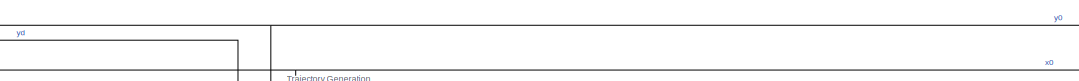
[diagram: root canvas - part 1/3, top center region]
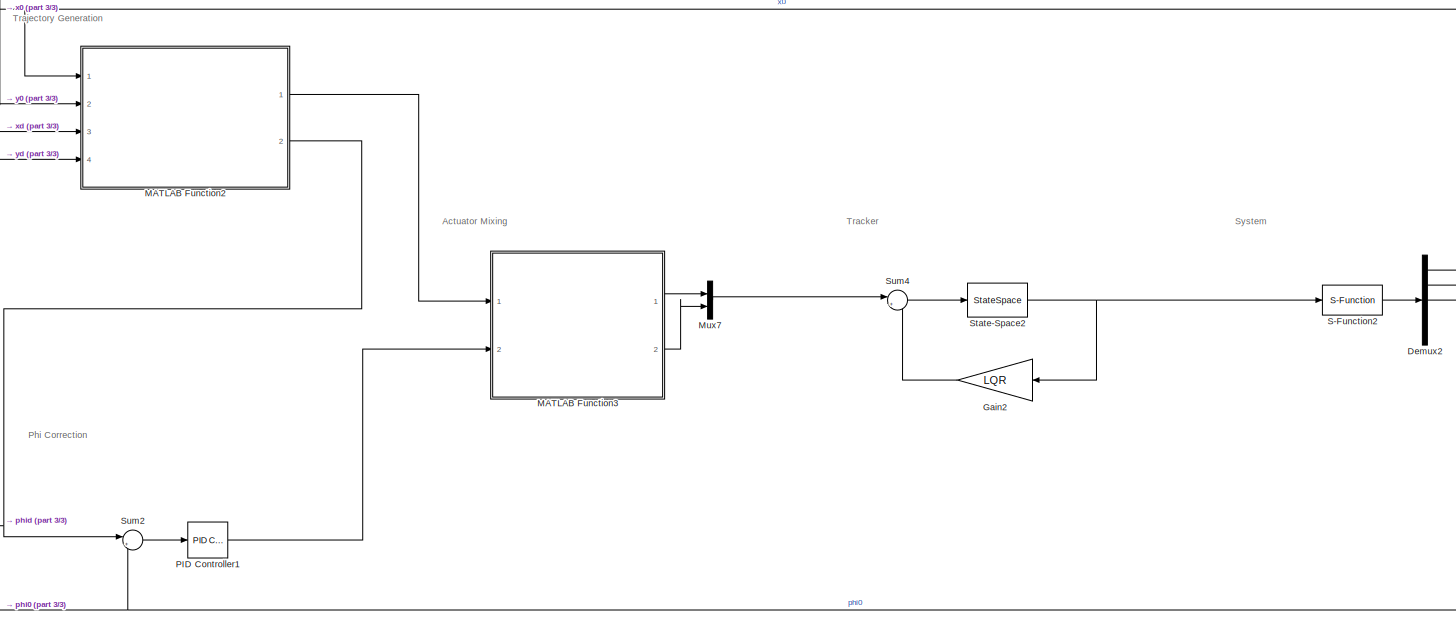
[diagram: root canvas - part 2/3, right side, full height]
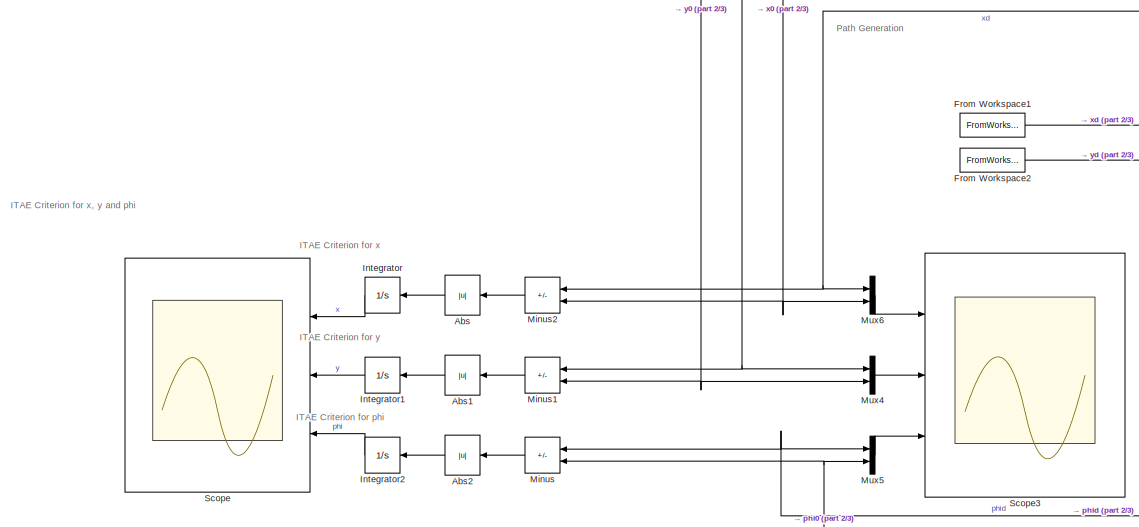
[diagram: root canvas - part 3/3, left side, full height]
MODEL slx_29a52156bc82
KIND model
CONFIG AbsTol = auto
CONFIG EnableMultiTasking = off
CONFIG FixedStep = auto
CONFIG MaxStep = auto
CONFIG MinStep = auto
CONFIG RelTol = 1e-3
CONFIG SampleTimeConstraint = Unconstrained
CONFIG SolverName = VariableStepAuto
CONFIG StartTime = 0.0
CONFIG StopTime = 100
BLOCK [Abs] Abs
  SaturateOnIntegerOverflow = off
BLOCK [Abs] Abs1
  SaturateOnIntegerOverflow = off
BLOCK [Abs] Abs2
  SaturateOnIntegerOverflow = off
BLOCK [Demux] Demux2
  Outputs = 5
  Ports = [1, 5]
BLOCK [FromWorkspace] From Workspace1
  VariableName = xts
BLOCK [FromWorkspace] From Workspace2
  VariableName = yts
BLOCK [Gain] Gain2
  Gain = LQR
  Multiplication = Matrix(K*u)
BLOCK [Integrator] Integrator
  Ports = [1, 1]
BLOCK [Integrator] Integrator1
  Ports = [1, 1]
BLOCK [Integrator] Integrator2
  Ports = [1, 1]
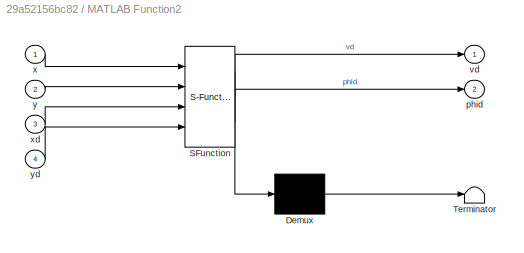
BLOCK [SubSystem] MATLAB Function2
  ErrorFcn = Stateflow.Translate.translate
  PermitHierarchicalResolution = ExplicitOnly
  Ports = [4, 2]
  RequestExecContextInheritance = off
  SFBlockType = MATLAB Function
  TreatAsAtomicUnit = on
BLOCK [Demux] MATLAB Function2/ Demux 
  Outputs = 1
  Ports = [1, 1]
BLOCK [S-Function] MATLAB Function2/ SFunction 
  EnableBusSupport = on
  FunctionName = sf_sfun
  PortCounts = [4 3]
  Ports = [4, 3]
  SFcnIsStateOwnerBlock = off
  SFunctionDeploymentMode = off
  Tag = Stateflow S-Function 3
BLOCK [Terminator] MATLAB Function2/ Terminator 
BLOCK [Outport] MATLAB Function2/phid
  Port = 2
BLOCK [Outport] MATLAB Function2/vd
BLOCK [Inport] MATLAB Function2/x
BLOCK [Inport] MATLAB Function2/xd
  Port = 3
BLOCK [Inport] MATLAB Function2/y
  Port = 2
BLOCK [Inport] MATLAB Function2/yd
  Port = 4
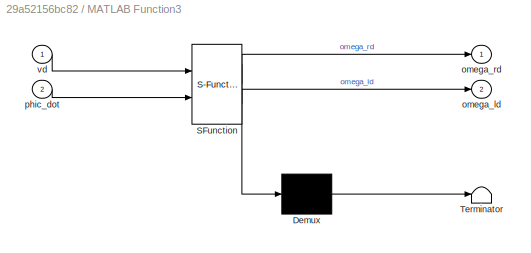
BLOCK [SubSystem] MATLAB Function3
  ErrorFcn = Stateflow.Translate.translate
  PermitHierarchicalResolution = ExplicitOnly
  Ports = [2, 2]
  RequestExecContextInheritance = off
  SFBlockType = MATLAB Function
  TreatAsAtomicUnit = on
BLOCK [Demux] MATLAB Function3/ Demux 
  Outputs = 1
  Ports = [1, 1]
BLOCK [S-Function] MATLAB Function3/ SFunction 
  EnableBusSupport = on
  FunctionName = sf_sfun
  PortCounts = [2 3]
  Ports = [2, 3]
  SFcnIsStateOwnerBlock = off
  SFunctionDeploymentMode = off
  Tag = Stateflow S-Function 4
BLOCK [Terminator] MATLAB Function3/ Terminator 
BLOCK [Outport] MATLAB Function3/omega_ld
  Port = 2
BLOCK [Outport] MATLAB Function3/omega_rd
BLOCK [Inport] MATLAB Function3/phic_dot
  Port = 2
BLOCK [Inport] MATLAB Function3/vd
BLOCK [Sum] Minus
  IconShape = rectangular
  Inputs = +-
  Ports = [2, 1]
BLOCK [Sum] Minus1
  IconShape = rectangular
  Inputs = +-
  Ports = [2, 1]
BLOCK [Sum] Minus2
  IconShape = rectangular
  Inputs = +-
  Ports = [2, 1]
BLOCK [Mux] Mux4
  DisplayOption = bar
  Inputs = 2
  Ports = [2, 1]
BLOCK [Mux] Mux5
  DisplayOption = bar
  Inputs = 2
  Ports = [2, 1]
BLOCK [Mux] Mux6
  DisplayOption = bar
  Inputs = 2
  Ports = [2, 1]
BLOCK [Mux] Mux7
  DisplayOption = bar
  Inputs = 2
  Ports = [2, 1]
BLOCK [Reference] PID Controller1  REF=pid_lib/PID Controller
  Ports = [1, 1]
  SourceBlock = pid_lib/PID Controller
  SourceProductBaseCode = SL
  SourceType = PID 1dof
BLOCK [S-Function] S-Function2
  EnableBusSupport = off
  FunctionName = diffdrive
  Ports = [1, 1]
  SFcnIsStateOwnerBlock = off
  SFunctionDeploymentMode = off
BLOCK [Scope] Scope
  Floating = off
  NumInputPorts = 3
  Ports = [3]
  ScopeSpecificationString = Simulink.scopes.TimeScopeBlockCfg('CurrentConfiguration', extmgr.ConfigurationSet(extmgr.Configuration('Core','General UI',true,'FigureColor',[1 1 1]),extmgr.Configuration('Core','Source UI',true),extmgr.Configuration('Sources','WiredSimulink',true,'DataLoggingVariableName','ScopeData1'),extmgr.Configuration('Visuals','Time Domain',true,'SerializedDisplays',{struct('MinYLimReal','-1.38162','MaxYLi...<+3046ch>
BLOCK [Scope] Scope3
  Floating = off
  NumInputPorts = 3
  Ports = [3]
  ScopeSpecificationString = Simulink.scopes.TimeScopeBlockCfg('CurrentConfiguration', extmgr.ConfigurationSet(extmgr.Configuration('Core','General UI',true,'FigureColor',[1 1 1]),extmgr.Configuration('Core','Source UI',true),extmgr.Configuration('Sources','WiredSimulink',true,'DataLoggingVariableName','ScopeData3'),extmgr.Configuration('Visuals','Time Domain',true,'SerializedDisplays',{struct('MinYLimReal','-1.13668','MaxYLi...<+3294ch>
BLOCK [StateSpace] State-Space2
  A = [-10.3 0; 0 -9.4318]
  B = [30 0; 0 26.5152]
  C = [1 0; 0 1]
  D = [0 0; 0 0]
  InitialCondition = 0
  Ports = [1, 1]
BLOCK [Sum] Sum2
  Inputs = |+-
  Ports = [2, 1]
BLOCK [Sum] Sum4
  Inputs = |+-
  Ports = [2, 1]
ANNOTATION (root): Actuator Mixing
ANNOTATION (root): ITAE Criterion for phi
ANNOTATION (root): ITAE Criterion for x
ANNOTATION (root): ITAE Criterion for x, y and phi
ANNOTATION (root): ITAE Criterion for y
ANNOTATION (root): Path Generation
ANNOTATION (root): Phi Correction
ANNOTATION (root): System
ANNOTATION (root): Tracker
ANNOTATION (root): Trajectory Generation
LINE Abs1:1 -> Integrator1:1
LINE Abs2:1 -> Integrator2:1
LINE Abs:1 -> Integrator:1
NET Demux2:1 -> MATLAB Function2:1, Minus2:2, Mux6:2
NET Demux2:2 -> MATLAB Function2:2, Minus1:2, Mux4:2
NET Demux2:3 -> Minus:2, Mux5:2, Sum2:2
NET From Workspace1:1 -> MATLAB Function2:3, Minus2:1, Mux6:1
NET From Workspace2:1 -> MATLAB Function2:4, Minus1:1, Mux4:1
LINE Gain2:1 -> Sum4:2
LINE Integrator1:1 -> Scope:2
LINE Integrator2:1 -> Scope:3
LINE Integrator:1 -> Scope:1
LINE MATLAB Function2:1 -> MATLAB Function3:1
NET MATLAB Function2:2 -> Minus:1, Mux5:1, Sum2:1
LINE MATLAB Function3:1 -> Mux7:1
LINE MATLAB Function3:2 -> Mux7:2
LINE Minus1:1 -> Abs1:1
LINE Minus2:1 -> Abs:1
LINE Minus:1 -> Abs2:1
LINE Mux4:1 -> Scope3:2
LINE Mux5:1 -> Scope3:3
LINE Mux6:1 -> Scope3:1
LINE Mux7:1 -> Sum4:1
LINE PID Controller1:1 -> MATLAB Function3:2
LINE S-Function2:1 -> Demux2:1
NET State-Space2:1 -> Gain2:1, S-Function2:1
LINE Sum2:1 -> PID Controller1:1
LINE Sum4:1 -> State-Space2:1
note: NET lines group one-source signal fan-out (src -> all destinations, sorted); 1:1 wires keep LINE
CHART MATLAB Function2 states=1 transitions=1
  STATE_LABEL 'eML_blk_kernel()'
  STATE_LABEL 'SCRIPT:\nfunction [vd,phid] = TrajectoryGeneration(x,y,xd,yd)\n\n% velocity gain between 0 and 1\n% chosen to be 0.5 as a good median\nalpha = 0.5;\n\n% calculation of phid and vd with error checking for NaN\nif isnan(atan((yd-y)/(xd-x)))\n    phid = 0;\nelse\n    phid = atan((yd-y)/(xd-x));\nend\n\nif isnan(alpha*sqrt(((xd-x)^2)+((yd-y)^2)))\n    vd = 0;\nelse\n    vd = alpha*sqrt(((xd-x)^2)+((yd-y)^2));\nend'
CHART MATLAB Function3 states=1 transitions=1
  STATE_LABEL 'eML_blk_kernel()'
  STATE_LABEL 'SCRIPT:\nfunction [omega_rd,omega_ld] = ActuatorMixing(vd,phic_dot)\n\n% radius of the wheel\nr=2;\n% half the distance between the driven wheels\nd=4;\n\n% convert from (vd, phic_dot) to (omega_rd, omega_ld)\nomega_rd = ((2*vd)+(phic_dot*d))/(2*r);\nomega_ld = ((2*vd)-(phic_dot*d))/(2*r);'
CHART  states=0 transitions=0
CHART  states=0 transitions=0
